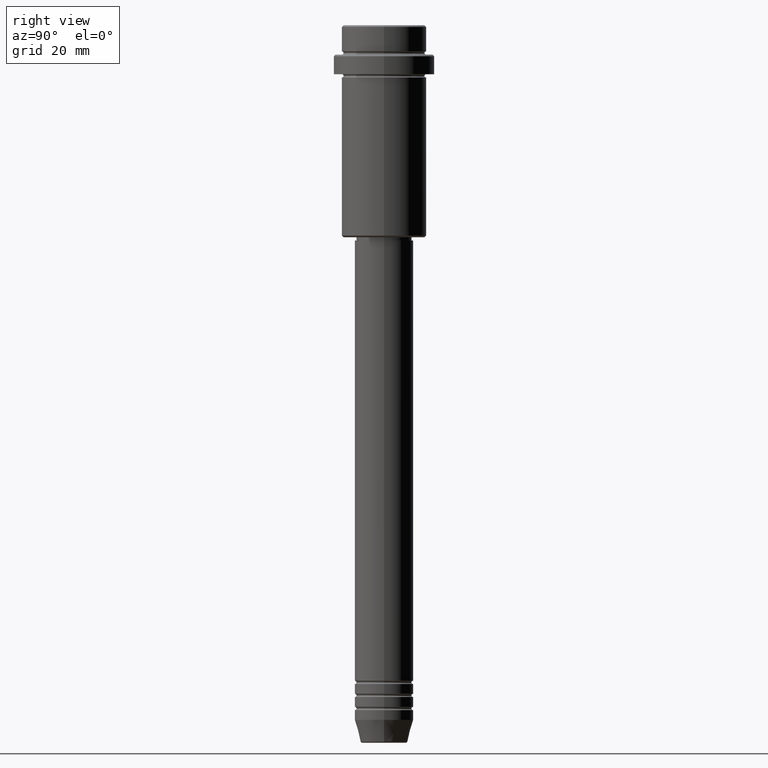
[diagram: clean part render]
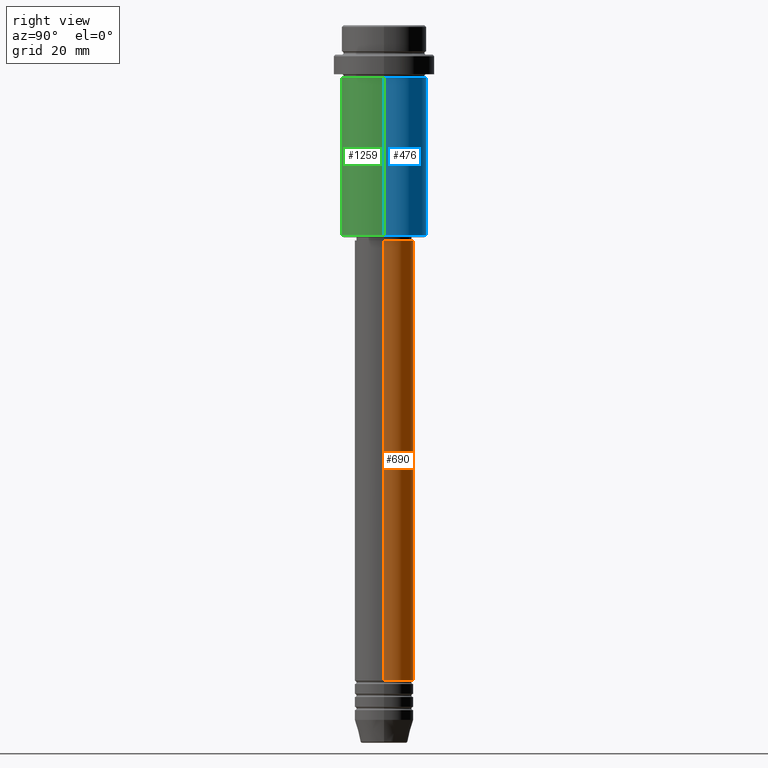
[diagram: same view with three faces highlighted in distinct colors, each labeled with its STEP entity id]
A machine part, right view with three faces highlighted in distinct colors.
Their STEP definitions:

[orange] entity #690 — the highlighted cylindrical surface (edge-blend (fillet) strip) has radius 9 mm, axis along (-0, -0, 1).
#6 = FACE_OUTER_BOUND ( 'NONE', #535, .T. ) ;
#24 = EDGE_CURVE ( 'NONE', #1158, #633, #95, .T. ) ;
#85 = VERTEX_POINT ( 'NONE', #841 ) ;
#95 = CIRCLE ( 'NONE', #1398, 9.000000000000000000 ) ;
#220 = EDGE_CURVE ( 'NONE', #1158, #85, #1100, .T. ) ;
#239 = AXIS2_PLACEMENT_3D ( 'NONE', #858, #1322, #1189 ) ;
#256 = CIRCLE ( 'NONE', #1123, 9.000000000000001776 ) ;
#352 = LINE ( 'NONE', #697, #1359 ) ;
#358 = EDGE_CURVE ( 'NONE', #85, #1048, #256, .T. ) ;
#372 = ORIENTED_EDGE ( 'NONE', *, *, #220, .F. ) ;
#453 = DIRECTION ( 'NONE',  ( -0.000000000000000000, -0.000000000000000000, 1.000000000000000000 ) ) ;
#460 = CARTESIAN_POINT ( 'NONE',  ( 9.000000000000000000, 0.000000000000000000, -200.9999999999998579 ) ) ;
#524 = CARTESIAN_POINT ( 'NONE',  ( -9.000000000000001776, 1.102182119232617911E-15, -65.99999999999997158 ) ) ;
#535 = EDGE_LOOP ( 'NONE', ( #1042, #567, #1107, #372 ) ) ;
#567 = ORIENTED_EDGE ( 'NONE', *, *, #797, .T. ) ;
#633 = VERTEX_POINT ( 'NONE', #978 ) ;
#676 = DIRECTION ( 'NONE',  ( -0.000000000000000000, -0.000000000000000000, 1.000000000000000000 ) ) ;
#690 = ADVANCED_FACE ( 'NONE', ( #6 ), #877, .T. ) ;
#697 = CARTESIAN_POINT ( 'NONE',  ( -9.000000000000001776, 1.102182119232617911E-15, 0.000000000000000000 ) ) ;
#778 = DIRECTION ( 'NONE',  ( 1.000000000000000000, 0.000000000000000000, 0.000000000000000000 ) ) ;
#790 = DIRECTION ( 'NONE',  ( -0.000000000000000000, -0.000000000000000000, 1.000000000000000000 ) ) ;
#797 = EDGE_CURVE ( 'NONE', #633, #1048, #352, .T. ) ;
#841 = CARTESIAN_POINT ( 'NONE',  ( 9.000000000000001776, 0.000000000000000000, -65.99999999999997158 ) ) ;
#858 = CARTESIAN_POINT ( 'NONE',  ( 0.000000000000000000, 0.000000000000000000, 0.000000000000000000 ) ) ;
#877 = CYLINDRICAL_SURFACE ( 'NONE', #239, 9.000000000000001776 ) ;
#975 = CARTESIAN_POINT ( 'NONE',  ( 9.000000000000001776, 0.000000000000000000, 0.000000000000000000 ) ) ;
#978 = CARTESIAN_POINT ( 'NONE',  ( -9.000000000000000000, 1.102182119232617714E-15, -200.9999999999998579 ) ) ;
#998 = DIRECTION ( 'NONE',  ( 1.000000000000000000, 0.000000000000000000, 0.000000000000000000 ) ) ;
#1042 = ORIENTED_EDGE ( 'NONE', *, *, #24, .T. ) ;
#1048 = VERTEX_POINT ( 'NONE', #524 ) ;
#1097 = CARTESIAN_POINT ( 'NONE',  ( 0.000000000000000000, 0.000000000000000000, -65.99999999999997158 ) ) ;
#1100 = LINE ( 'NONE', #975, #1122 ) ;
#1107 = ORIENTED_EDGE ( 'NONE', *, *, #358, .F. ) ;
#1122 = VECTOR ( 'NONE', #1412, 1000.000000000000000 ) ;
#1123 = AXIS2_PLACEMENT_3D ( 'NONE', #1097, #453, #778 ) ;
#1158 = VERTEX_POINT ( 'NONE', #460 ) ;
#1189 = DIRECTION ( 'NONE',  ( 1.000000000000000000, 0.000000000000000000, 0.000000000000000000 ) ) ;
#1322 = DIRECTION ( 'NONE',  ( -0.000000000000000000, -0.000000000000000000, 1.000000000000000000 ) ) ;
#1336 = CARTESIAN_POINT ( 'NONE',  ( 0.000000000000000000, 0.000000000000000000, -200.9999999999998579 ) ) ;
#1359 = VECTOR ( 'NONE', #790, 1000.000000000000000 ) ;
#1398 = AXIS2_PLACEMENT_3D ( 'NONE', #1336, #676, #998 ) ;
#1412 = DIRECTION ( 'NONE',  ( -0.000000000000000000, -0.000000000000000000, 1.000000000000000000 ) ) ;

[blue] entity #476 — the highlighted cylindrical surface (partial cylindrical patch) has radius 13 mm, axis along (-0, -0, 1).
#32 = DIRECTION ( 'NONE',  ( -0.000000000000000000, -0.000000000000000000, 1.000000000000000000 ) ) ;
#82 = CARTESIAN_POINT ( 'NONE',  ( 13.00000000000000000, 0.000000000000000000, 0.000000000000000000 ) ) ;
#149 = VERTEX_POINT ( 'NONE', #879 ) ;
#234 = ORIENTED_EDGE ( 'NONE', *, *, #1102, .F. ) ;
#258 = DIRECTION ( 'NONE',  ( -1.000000000000000000, 0.000000000000000000, 0.000000000000000000 ) ) ;
#285 = DIRECTION ( 'NONE',  ( -0.000000000000000000, -0.000000000000000000, 1.000000000000000000 ) ) ;
#374 = EDGE_CURVE ( 'NONE', #149, #563, #620, .T. ) ;
#476 = ADVANCED_FACE ( 'NONE', ( #929 ), #1031, .T. ) ;
#482 = CIRCLE ( 'NONE', #937, 13.00000000000000000 ) ;
#491 = DIRECTION ( 'NONE',  ( 1.000000000000000000, 0.000000000000000000, 0.000000000000000000 ) ) ;
#506 = CARTESIAN_POINT ( 'NONE',  ( 0.000000000000000000, 0.000000000000000000, 0.000000000000000000 ) ) ;
#556 = DIRECTION ( 'NONE',  ( -0.000000000000000000, -0.000000000000000000, 1.000000000000000000 ) ) ;
#563 = VERTEX_POINT ( 'NONE', #1144 ) ;
#571 = ORIENTED_EDGE ( 'NONE', *, *, #615, .T. ) ;
#615 = EDGE_CURVE ( 'NONE', #1324, #1272, #1089, .T. ) ;
#620 = LINE ( 'NONE', #82, #897 ) ;
#636 = DIRECTION ( 'NONE',  ( 1.000000000000000000, 0.000000000000000000, 0.000000000000000000 ) ) ;
#689 = CIRCLE ( 'NONE', #1268, 13.00000000000000000 ) ;
#824 = VECTOR ( 'NONE', #1210, 1000.000000000000000 ) ;
#879 = CARTESIAN_POINT ( 'NONE',  ( 13.00000000000000000, 0.000000000000000000, -64.49999999999997158 ) ) ;
#897 = VECTOR ( 'NONE', #556, 1000.000000000000000 ) ;
#929 = FACE_OUTER_BOUND ( 'NONE', #1012, .T. ) ;
#937 = AXIS2_PLACEMENT_3D ( 'NONE', #1227, #32, #258 ) ;
#977 = ORIENTED_EDGE ( 'NONE', *, *, #374, .F. ) ;
#1012 = EDGE_LOOP ( 'NONE', ( #1036, #571, #234, #977 ) ) ;
#1031 = CYLINDRICAL_SURFACE ( 'NONE', #1073, 13.00000000000000000 ) ;
#1036 = ORIENTED_EDGE ( 'NONE', *, *, #1155, .T. ) ;
#1065 = DIRECTION ( 'NONE',  ( -0.000000000000000000, -0.000000000000000000, 1.000000000000000000 ) ) ;
#1073 = AXIS2_PLACEMENT_3D ( 'NONE', #506, #285, #491 ) ;
#1089 = LINE ( 'NONE', #1105, #824 ) ;
#1102 = EDGE_CURVE ( 'NONE', #563, #1272, #689, .T. ) ;
#1105 = CARTESIAN_POINT ( 'NONE',  ( -13.00000000000000000, 1.592040838891559095E-15, 0.000000000000000000 ) ) ;
#1144 = CARTESIAN_POINT ( 'NONE',  ( 13.00000000000000000, 0.000000000000000000, -16.00000000000000000 ) ) ;
#1155 = EDGE_CURVE ( 'NONE', #149, #1324, #482, .T. ) ;
#1210 = DIRECTION ( 'NONE',  ( -0.000000000000000000, -0.000000000000000000, 1.000000000000000000 ) ) ;
#1227 = CARTESIAN_POINT ( 'NONE',  ( 0.000000000000000000, 0.000000000000000000, -64.49999999999997158 ) ) ;
#1258 = CARTESIAN_POINT ( 'NONE',  ( -13.00000000000000000, 1.592040838891559095E-15, -64.49999999999997158 ) ) ;
#1268 = AXIS2_PLACEMENT_3D ( 'NONE', #1301, #1065, #636 ) ;
#1272 = VERTEX_POINT ( 'NONE', #1340 ) ;
#1301 = CARTESIAN_POINT ( 'NONE',  ( 0.000000000000000000, 0.000000000000000000, -16.00000000000000000 ) ) ;
#1324 = VERTEX_POINT ( 'NONE', #1258 ) ;
#1340 = CARTESIAN_POINT ( 'NONE',  ( -13.00000000000000000, 1.592040838891559095E-15, -16.00000000000000000 ) ) ;

[green] entity #1259 — the highlighted cylindrical surface (partial cylindrical patch) has radius 13 mm, axis along (-0, -0, 1).
#75 = CIRCLE ( 'NONE', #1147, 13.00000000000000000 ) ;
#82 = CARTESIAN_POINT ( 'NONE',  ( 13.00000000000000000, 0.000000000000000000, 0.000000000000000000 ) ) ;
#84 = DIRECTION ( 'NONE',  ( -0.000000000000000000, -0.000000000000000000, 1.000000000000000000 ) ) ;
#149 = VERTEX_POINT ( 'NONE', #879 ) ;
#152 = FACE_OUTER_BOUND ( 'NONE', #1232, .T. ) ;
#210 = ORIENTED_EDGE ( 'NONE', *, *, #374, .T. ) ;
#219 = DIRECTION ( 'NONE',  ( 1.000000000000000000, 0.000000000000000000, 0.000000000000000000 ) ) ;
#245 = CYLINDRICAL_SURFACE ( 'NONE', #878, 13.00000000000000000 ) ;
#307 = CARTESIAN_POINT ( 'NONE',  ( 0.000000000000000000, 0.000000000000000000, -16.00000000000000000 ) ) ;
#374 = EDGE_CURVE ( 'NONE', #149, #563, #620, .T. ) ;
#446 = ORIENTED_EDGE ( 'NONE', *, *, #615, .F. ) ;
#457 = CIRCLE ( 'NONE', #1045, 13.00000000000000000 ) ;
#548 = DIRECTION ( 'NONE',  ( -1.000000000000000000, 0.000000000000000000, 0.000000000000000000 ) ) ;
#556 = DIRECTION ( 'NONE',  ( -0.000000000000000000, -0.000000000000000000, 1.000000000000000000 ) ) ;
#560 = DIRECTION ( 'NONE',  ( -0.000000000000000000, -0.000000000000000000, 1.000000000000000000 ) ) ;
#563 = VERTEX_POINT ( 'NONE', #1144 ) ;
#615 = EDGE_CURVE ( 'NONE', #1324, #1272, #1089, .T. ) ;
#620 = LINE ( 'NONE', #82, #897 ) ;
#652 = EDGE_CURVE ( 'NONE', #1272, #563, #457, .T. ) ;
#681 = DIRECTION ( 'NONE',  ( 1.000000000000000000, 0.000000000000000000, 0.000000000000000000 ) ) ;
#824 = VECTOR ( 'NONE', #1210, 1000.000000000000000 ) ;
#852 = DIRECTION ( 'NONE',  ( -0.000000000000000000, -0.000000000000000000, 1.000000000000000000 ) ) ;
#878 = AXIS2_PLACEMENT_3D ( 'NONE', #1013, #560, #681 ) ;
#879 = CARTESIAN_POINT ( 'NONE',  ( 13.00000000000000000, 0.000000000000000000, -64.49999999999997158 ) ) ;
#881 = ORIENTED_EDGE ( 'NONE', *, *, #999, .T. ) ;
#897 = VECTOR ( 'NONE', #556, 1000.000000000000000 ) ;
#999 = EDGE_CURVE ( 'NONE', #1324, #149, #75, .T. ) ;
#1013 = CARTESIAN_POINT ( 'NONE',  ( 0.000000000000000000, 0.000000000000000000, 0.000000000000000000 ) ) ;
#1045 = AXIS2_PLACEMENT_3D ( 'NONE', #307, #852, #219 ) ;
#1089 = LINE ( 'NONE', #1105, #824 ) ;
#1105 = CARTESIAN_POINT ( 'NONE',  ( -13.00000000000000000, 1.592040838891559095E-15, 0.000000000000000000 ) ) ;
#1144 = CARTESIAN_POINT ( 'NONE',  ( 13.00000000000000000, 0.000000000000000000, -16.00000000000000000 ) ) ;
#1147 = AXIS2_PLACEMENT_3D ( 'NONE', #1197, #84, #548 ) ;
#1197 = CARTESIAN_POINT ( 'NONE',  ( 0.000000000000000000, 0.000000000000000000, -64.49999999999997158 ) ) ;
#1210 = DIRECTION ( 'NONE',  ( -0.000000000000000000, -0.000000000000000000, 1.000000000000000000 ) ) ;
#1232 = EDGE_LOOP ( 'NONE', ( #446, #881, #210, #1415 ) ) ;
#1258 = CARTESIAN_POINT ( 'NONE',  ( -13.00000000000000000, 1.592040838891559095E-15, -64.49999999999997158 ) ) ;
#1259 = ADVANCED_FACE ( 'NONE', ( #152 ), #245, .T. ) ;
#1272 = VERTEX_POINT ( 'NONE', #1340 ) ;
#1324 = VERTEX_POINT ( 'NONE', #1258 ) ;
#1340 = CARTESIAN_POINT ( 'NONE',  ( -13.00000000000000000, 1.592040838891559095E-15, -16.00000000000000000 ) ) ;
#1415 = ORIENTED_EDGE ( 'NONE', *, *, #652, .F. ) ;